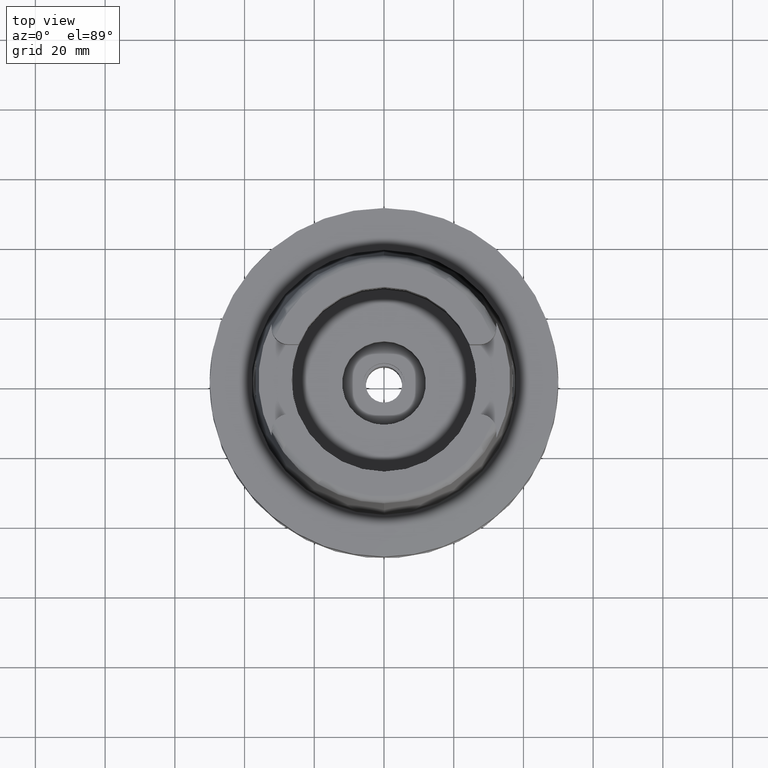
[diagram: clean part render]
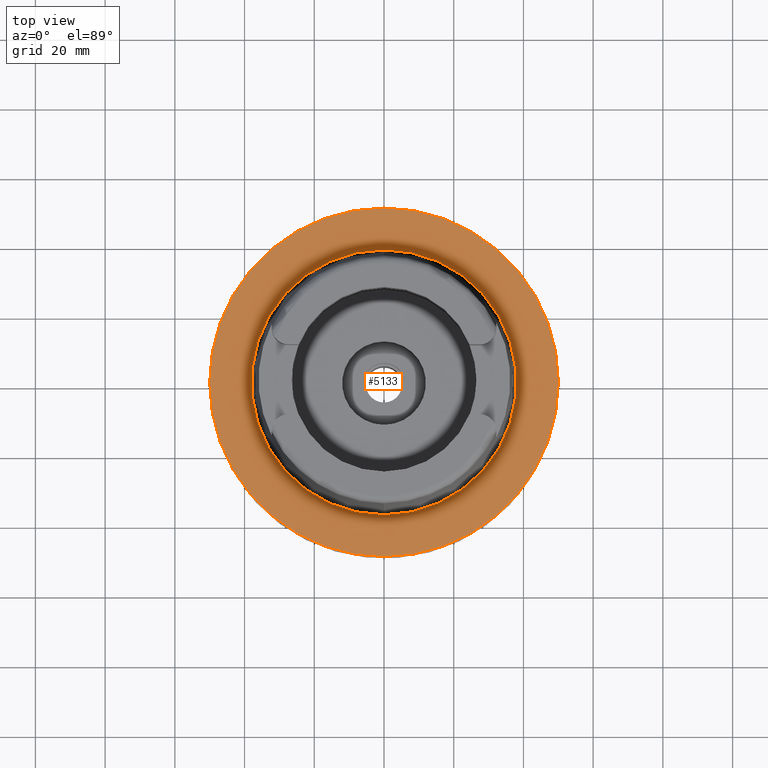
[diagram: same view with one face highlighted and labeled with its STEP entity id]
A machine part, top view. The second image highlights one B-rep face of the part: STEP entity #5133.
In plain terms, the highlighted planar face has unit normal (0, 0, 1).
Its self-contained STEP definition (entity closure, byte-faithful):
#249 = CIRCLE ( 'NONE', #513, 38.00001658251999714 ) ;
#513 = AXIS2_PLACEMENT_3D ( 'NONE', #1362, #4794, #1443 ) ;
#691 = CIRCLE ( 'NONE', #2835, 50.00000000000000000 ) ;
#838 = CARTESIAN_POINT ( 'NONE',  ( 0.0000000000000000000, 0.0000000000000000000, 1.136868377215999875E-13 ) ) ;
#951 = CARTESIAN_POINT ( 'NONE',  ( 0.0000000000000000000, 50.00000000000000000, 8.052817671947998165E-14 ) ) ;
#1033 = CARTESIAN_POINT ( 'NONE',  ( 0.0000000000000000000, 38.00001658251999714, 1.023181539494999863E-12 ) ) ;
#1082 = CARTESIAN_POINT ( 'NONE',  ( 0.0000000000000000000, 0.0000000000000000000, 1.421085471519999843E-14 ) ) ;
#1362 = CARTESIAN_POINT ( 'NONE',  ( 0.0000000000000000000, 0.0000000000000000000, 1.023181539494999863E-12 ) ) ;
#1443 = DIRECTION ( 'NONE',  ( 0.0000000000000000000, -1.000000000000000000, 0.0000000000000000000 ) ) ;
#1535 = DIRECTION ( 'NONE',  ( 0.0000000000000000000, 0.0000000000000000000, 1.000000000000000000 ) ) ;
#1569 = ORIENTED_EDGE ( 'NONE', *, *, #4485, .F. ) ;
#1979 = DIRECTION ( 'NONE',  ( 0.0000000000000000000, 1.000000000000000000, 0.0000000000000000000 ) ) ;
#1990 = CARTESIAN_POINT ( 'NONE',  ( 0.0000000000000000000, -50.00000000000000000, 1.136868377215999875E-13 ) ) ;
#2013 = DIRECTION ( 'NONE',  ( 1.000000000000000000, 0.0000000000000000000, 0.0000000000000000000 ) ) ;
#2125 = VERTEX_POINT ( 'NONE', #2452 ) ;
#2135 = DIRECTION ( 'NONE',  ( 0.0000000000000000000, -1.000000000000000000, 0.0000000000000000000 ) ) ;
#2234 = ORIENTED_EDGE ( 'NONE', *, *, #3267, .F. ) ;
#2452 = CARTESIAN_POINT ( 'NONE',  ( 0.0000000000000000000, -38.00001658251999714, 6.892264536873000076E-13 ) ) ;
#2483 = VERTEX_POINT ( 'NONE', #1990 ) ;
#2484 = FACE_BOUND ( 'NONE', #4665, .T. ) ;
#2553 = CIRCLE ( 'NONE', #4923, 50.00000000000000000 ) ;
#2763 = CIRCLE ( 'NONE', #4860, 38.00001658251999714 ) ;
#2794 = VERTEX_POINT ( 'NONE', #951 ) ;
#2808 = DIRECTION ( 'NONE',  ( 0.0000000000000000000, 0.0000000000000000000, 1.000000000000000000 ) ) ;
#2835 = AXIS2_PLACEMENT_3D ( 'NONE', #838, #4287, #2135 ) ;
#2837 = EDGE_CURVE ( 'NONE', #2483, #2794, #691, .T. ) ;
#3252 = DIRECTION ( 'NONE',  ( 0.0000000000000000000, 1.000000000000000000, 0.0000000000000000000 ) ) ;
#3267 = EDGE_CURVE ( 'NONE', #2125, #3784, #249, .T. ) ;
#3271 = CARTESIAN_POINT ( 'NONE',  ( 0.0000000000000000000, 0.0000000000000000000, 1.023181539494999863E-12 ) ) ;
#3314 = CARTESIAN_POINT ( 'NONE',  ( 0.0000000000000000000, 0.0000000000000000000, 1.136868377215999875E-13 ) ) ;
#3784 = VERTEX_POINT ( 'NONE', #1033 ) ;
#3891 = ORIENTED_EDGE ( 'NONE', *, *, #5154, .F. ) ;
#4137 = PLANE ( 'NONE',  #4659 ) ;
#4287 = DIRECTION ( 'NONE',  ( 0.0000000000000000000, 0.0000000000000000000, -1.000000000000000000 ) ) ;
#4485 = EDGE_CURVE ( 'NONE', #3784, #2125, #2763, .T. ) ;
#4545 = DIRECTION ( 'NONE',  ( 0.0000000000000000000, 0.0000000000000000000, -1.000000000000000000 ) ) ;
#4577 = FACE_OUTER_BOUND ( 'NONE', #5058, .T. ) ;
#4659 = AXIS2_PLACEMENT_3D ( 'NONE', #1082, #1535, #2013 ) ;
#4665 = EDGE_LOOP ( 'NONE', ( #1569, #2234 ) ) ;
#4794 = DIRECTION ( 'NONE',  ( 0.0000000000000000000, 0.0000000000000000000, 1.000000000000000000 ) ) ;
#4860 = AXIS2_PLACEMENT_3D ( 'NONE', #3271, #2808, #1979 ) ;
#4923 = AXIS2_PLACEMENT_3D ( 'NONE', #3314, #4545, #3252 ) ;
#5058 = EDGE_LOOP ( 'NONE', ( #3891, #5541 ) ) ;
#5133 = ADVANCED_FACE ( 'NONE', ( #4577, #2484 ), #4137, .T. ) ;
#5154 = EDGE_CURVE ( 'NONE', #2794, #2483, #2553, .T. ) ;
#5541 = ORIENTED_EDGE ( 'NONE', *, *, #2837, .F. ) ;